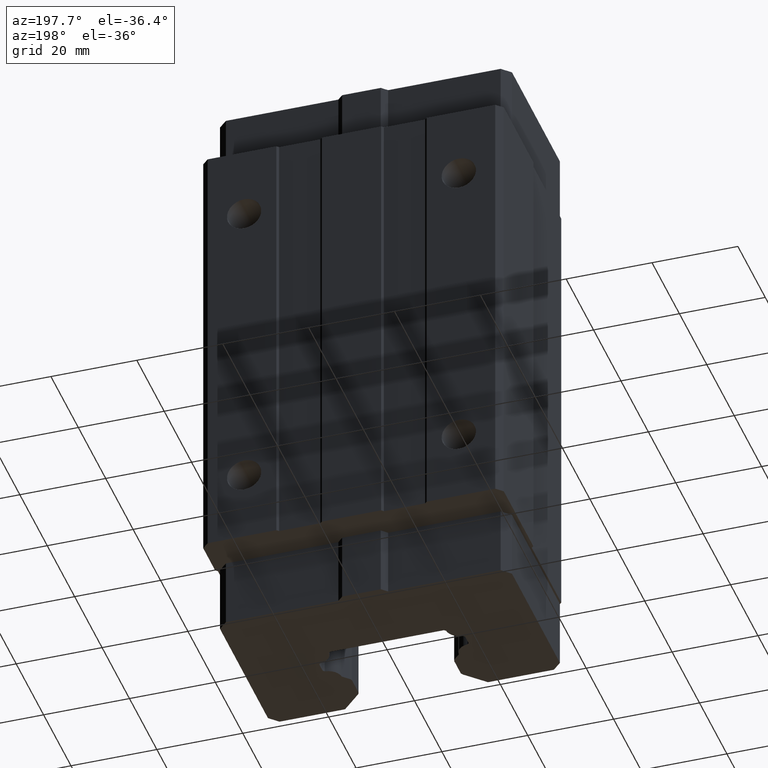
[diagram: clean part render]
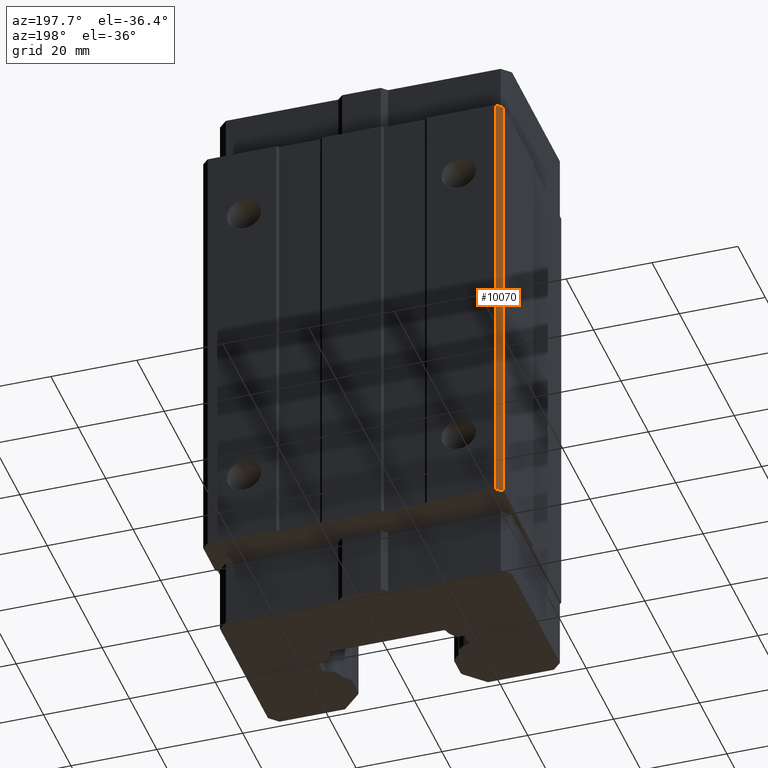
[diagram: same view with one face highlighted and labeled with its STEP entity id]
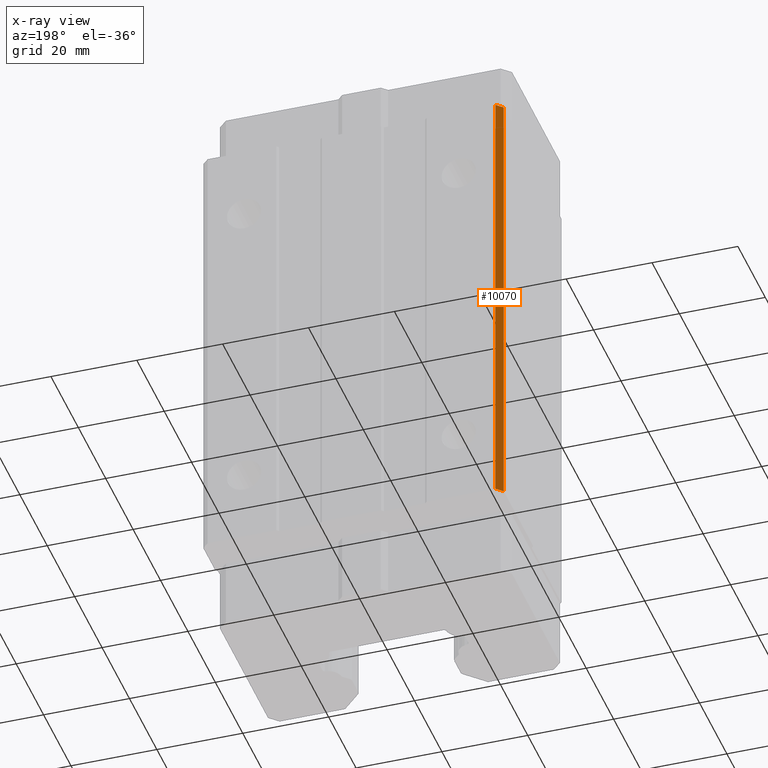
[diagram: x-ray of the same camera — body ghosted, the highlighted face saturated]
A machine part, auxiliary view. The second image highlights one B-rep face of the part: STEP entity #10070.
The next image is the same camera in x-ray: the body ghosted, the highlighted face saturated — about 0% of this face is hidden behind the body in this view.
In plain terms, the highlighted planar face has unit normal (-0.7071, 0.7071, 0).
Its self-contained STEP definition (entity closure, byte-faithful):
#4144 = CARTESIAN_POINT ( 'NONE',  ( -35.00000000000000000, 24.50000000000000000, 52.90000000000002700 ) ) ;
#4145 = DIRECTION ( 'NONE',  ( 0.0000000000000000000, 0.0000000000000000000, -1.000000000000000000 ) ) ;
#4146 = VECTOR ( 'NONE', #4145, 1000.000000000000000 ) ;
#4147 = CARTESIAN_POINT ( 'NONE',  ( -35.00000000000000000, 24.50000000000000000, -52.90000000000000600 ) ) ;
#4148 = LINE ( 'NONE', #4147, #4146 ) ;
#4149 = CARTESIAN_POINT ( 'NONE',  ( -35.00000000000000000, 24.50000000000000000, -52.90000000000000600 ) ) ;
#4150 = DIRECTION ( 'NONE',  ( -0.7071067811865474600, -0.7071067811865474600, 0.0000000000000000000 ) ) ;
#4151 = VECTOR ( 'NONE', #4150, 1000.000000000000100 ) ;
#4152 = CARTESIAN_POINT ( 'NONE',  ( -33.50000000000000000, 26.00000000000000400, -52.90000000000000600 ) ) ;
#4153 = LINE ( 'NONE', #4152, #4151 ) ;
#4154 = DIRECTION ( 'NONE',  ( -0.7071067811865474600, -0.7071067811865474600, 0.0000000000000000000 ) ) ;
#4155 = DIRECTION ( 'NONE',  ( -0.7071067811865475700, 0.7071067811865475700, 0.0000000000000000000 ) ) ;
#4156 = CARTESIAN_POINT ( 'NONE',  ( -33.50000000000000000, 26.00000000000000400, -52.90000000000000600 ) ) ;
#4157 = AXIS2_PLACEMENT_3D ( 'NONE', #4156, #4155, #4154 ) ;
#4158 = PLANE ( 'NONE',  #4157 ) ;
#4159 = FACE_OUTER_BOUND ( 'NONE', #10095, .T. ) ;
#4188 = CARTESIAN_POINT ( 'NONE',  ( -33.50000000000000000, 26.00000000000000400, 52.90000000000002000 ) ) ;
#4189 = DIRECTION ( 'NONE',  ( 0.0000000000000000000, 0.0000000000000000000, -1.000000000000000000 ) ) ;
#4190 = VECTOR ( 'NONE', #4189, 1000.000000000000000 ) ;
#4191 = CARTESIAN_POINT ( 'NONE',  ( -33.50000000000000000, 26.00000000000000400, -52.90000000000000600 ) ) ;
#4192 = LINE ( 'NONE', #4191, #4190 ) ;
#4193 = CARTESIAN_POINT ( 'NONE',  ( -33.50000000000000000, 26.00000000000000400, -52.90000000000000600 ) ) ;
#4204 = DIRECTION ( 'NONE',  ( -0.7071067811865474600, -0.7071067811865474600, 0.0000000000000000000 ) ) ;
#4205 = VECTOR ( 'NONE', #4204, 1000.000000000000100 ) ;
#4206 = CARTESIAN_POINT ( 'NONE',  ( -33.50000000000000000, 26.00000000000000400, 52.90000000000000600 ) ) ;
#4207 = LINE ( 'NONE', #4206, #4205 ) ;
#10070 = ADVANCED_FACE ( 'NONE', ( #4159 ), #4158, .T. ) ;
#10071 = ORIENTED_EDGE ( 'NONE', *, *, #10091, .T. ) ;
#10072 = ORIENTED_EDGE ( 'NONE', *, *, #10073, .T. ) ;
#10073 = EDGE_CURVE ( 'NONE', #10089, #10074, #4153, .T. ) ;
#10074 = VERTEX_POINT ( 'NONE', #4149 ) ;
#10075 = ORIENTED_EDGE ( 'NONE', *, *, #10076, .F. ) ;
#10076 = EDGE_CURVE ( 'NONE', #10077, #10074, #4148, .T. ) ;
#10077 = VERTEX_POINT ( 'NONE', #4144 ) ;
#10078 = ORIENTED_EDGE ( 'NONE', *, *, #10079, .F. ) ;
#10079 = EDGE_CURVE ( 'NONE', #10092, #10077, #4207, .T. ) ;
#10089 = VERTEX_POINT ( 'NONE', #4193 ) ;
#10091 = EDGE_CURVE ( 'NONE', #10092, #10089, #4192, .T. ) ;
#10092 = VERTEX_POINT ( 'NONE', #4188 ) ;
#10095 = EDGE_LOOP ( 'NONE', ( #10071, #10072, #10075, #10078 ) ) ;